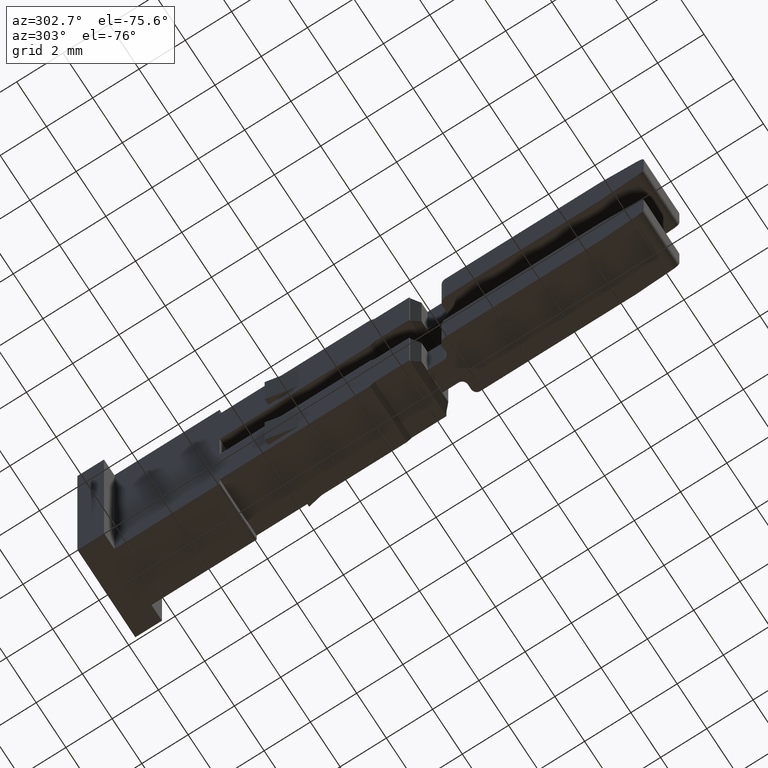
[diagram: clean part render]
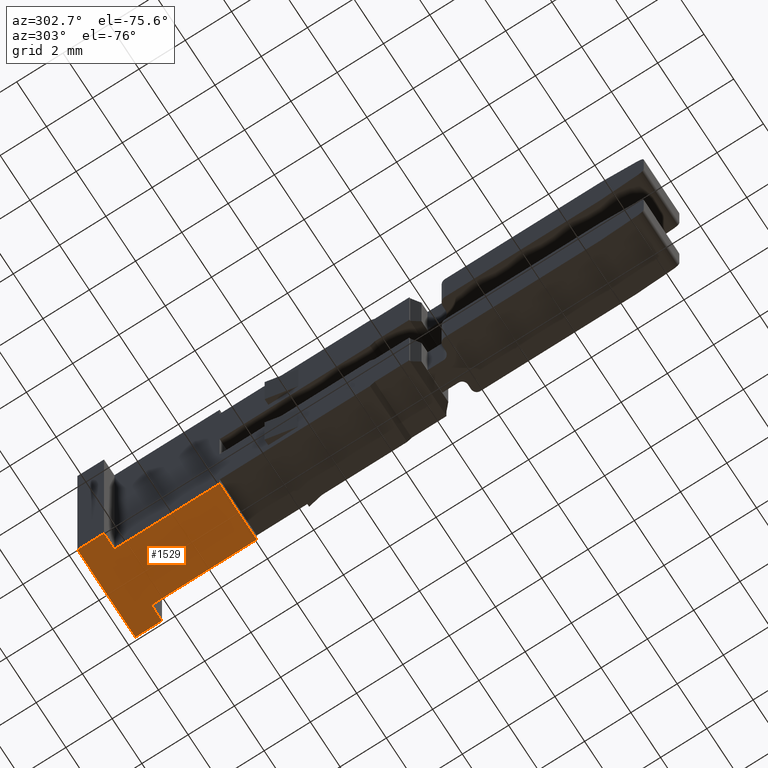
[diagram: same view with one face highlighted and labeled with its STEP entity id]
A machine part, auxiliary view. The second image highlights one B-rep face of the part: STEP entity #1529.
In plain terms, the highlighted planar face has unit normal (-0, -0, -1).
Its self-contained STEP definition (entity closure, byte-faithful):
#11 = VECTOR ( 'NONE', #2538, 1000.000000000000000 ) ;
#24 = VECTOR ( 'NONE', #2664, 1000.000000000000000 ) ;
#49 = VECTOR ( 'NONE', #2620, 1000.000000000000000 ) ;
#155 = AXIS2_PLACEMENT_3D ( 'NONE', #2006, #2035, #1991 ) ;
#374 = VECTOR ( 'NONE', #2470, 1000.000000000000000 ) ;
#379 = VECTOR ( 'NONE', #2489, 1000.000000000000000 ) ;
#382 = VECTOR ( 'NONE', #2491, 1000.000000000000000 ) ;
#395 = VECTOR ( 'NONE', #2492, 1000.000000000000000 ) ;
#396 = VECTOR ( 'NONE', #2535, 1000.000000000000000 ) ;
#777 = ORIENTED_EDGE ( 'NONE', *, *, #1352, .F. ) ;
#781 = ORIENTED_EDGE ( 'NONE', *, *, #1339, .T. ) ;
#783 = ORIENTED_EDGE ( 'NONE', *, *, #1363, .T. ) ;
#811 = ORIENTED_EDGE ( 'NONE', *, *, #1346, .F. ) ;
#822 = ORIENTED_EDGE ( 'NONE', *, *, #1357, .T. ) ;
#831 = ORIENTED_EDGE ( 'NONE', *, *, #1330, .T. ) ;
#837 = ORIENTED_EDGE ( 'NONE', *, *, #1391, .T. ) ;
#855 = ORIENTED_EDGE ( 'NONE', *, *, #1382, .T. ) ;
#865 = EDGE_LOOP ( 'NONE', ( #777, #831, #783, #855, #822, #837, #811, #781 ) ) ;
#1257 = VERTEX_POINT ( 'NONE', #2329 ) ;
#1259 = VERTEX_POINT ( 'NONE', #2339 ) ;
#1260 = VERTEX_POINT ( 'NONE', #2344 ) ;
#1269 = VERTEX_POINT ( 'NONE', #2330 ) ;
#1270 = VERTEX_POINT ( 'NONE', #2356 ) ;
#1278 = VERTEX_POINT ( 'NONE', #2331 ) ;
#1289 = VERTEX_POINT ( 'NONE', #2337 ) ;
#1290 = VERTEX_POINT ( 'NONE', #2300 ) ;
#1330 = EDGE_CURVE ( 'NONE', #1270, #1269, #2402, .T. ) ;
#1339 = EDGE_CURVE ( 'NONE', #1257, #1278, #2478, .T. ) ;
#1346 = EDGE_CURVE ( 'NONE', #1257, #1289, #2502, .T. ) ;
#1352 = EDGE_CURVE ( 'NONE', #1270, #1278, #2508, .T. ) ;
#1357 = EDGE_CURVE ( 'NONE', #1260, #1290, #2527, .T. ) ;
#1363 = EDGE_CURVE ( 'NONE', #1269, #1259, #2537, .T. ) ;
#1382 = EDGE_CURVE ( 'NONE', #1259, #1260, #2587, .T. ) ;
#1391 = EDGE_CURVE ( 'NONE', #1290, #1289, #2615, .T. ) ;
#1529 = ADVANCED_FACE ( 'NONE', ( #2028 ), #1999, .T. ) ;
#1991 = DIRECTION ( 'NONE',  ( 0.0000000000000000000, 1.000000000000000000, -9.281390519504917400E-014 ) ) ;
#1999 = PLANE ( 'NONE',  #155 ) ;
#2006 = CARTESIAN_POINT ( 'NONE',  ( 1457.871626077922200, 1004.894679537514000, -87.84999999998700600 ) ) ;
#2028 = FACE_OUTER_BOUND ( 'NONE', #865, .T. ) ;
#2035 = DIRECTION ( 'NONE',  ( -1.715124499443520100E-015, -9.281390519504917400E-014, -1.000000000000000000 ) ) ;
#2300 = CARTESIAN_POINT ( 'NONE',  ( 1456.769071211365800, 1008.542679537516500, -87.84999999998723300 ) ) ;
#2329 = CARTESIAN_POINT ( 'NONE',  ( 1456.068071211366000, 1009.692679537514100, -87.84999999998744600 ) ) ;
#2330 = CARTESIAN_POINT ( 'NONE',  ( 1459.267071211366600, 1008.542679537515800, -87.84999999998737500 ) ) ;
#2331 = CARTESIAN_POINT ( 'NONE',  ( 1459.968071211366100, 1009.692679537514100, -87.84999999998740300 ) ) ;
#2337 = CARTESIAN_POINT ( 'NONE',  ( 1456.068071211366000, 1008.542679537516500, -87.84999999998736100 ) ) ;
#2339 = CARTESIAN_POINT ( 'NONE',  ( 1459.267071211366600, 1003.994679537510600, -87.84999999998711900 ) ) ;
#2344 = CARTESIAN_POINT ( 'NONE',  ( 1456.769071211365800, 1003.994679537512800, -87.84999999998702000 ) ) ;
#2356 = CARTESIAN_POINT ( 'NONE',  ( 1459.968071211366100, 1008.542679537513700, -87.84999999998736100 ) ) ;
#2402 = LINE ( 'NONE', #2471, #374 ) ;
#2458 = CARTESIAN_POINT ( 'NONE',  ( 1457.871626077922200, 1009.692679537512000, -87.84999999998744600 ) ) ;
#2470 = DIRECTION ( 'NONE',  ( -1.000000000000000000, 1.591874026890570400E-028, 1.715124499443520100E-015 ) ) ;
#2471 = CARTESIAN_POINT ( 'NONE',  ( 1457.871626077922200, 1008.542679537512100, -87.84999999998734700 ) ) ;
#2478 = LINE ( 'NONE', #2458, #379 ) ;
#2489 = DIRECTION ( 'NONE',  ( 1.000000000000000000, -1.591874026890570400E-028, -1.715124499443520100E-015 ) ) ;
#2491 = DIRECTION ( 'NONE',  ( 6.401193638283110000E-015, 1.000000000000000000, 0.0000000000000000000 ) ) ;
#2492 = DIRECTION ( 'NONE',  ( -6.401193638283130500E-015, -1.000000000000000000, 0.0000000000000000000 ) ) ;
#2502 = LINE ( 'NONE', #2507, #395 ) ;
#2507 = CARTESIAN_POINT ( 'NONE',  ( 1456.068071211366000, 1009.692679537520100, -87.84999999998744600 ) ) ;
#2508 = LINE ( 'NONE', #2513, #382 ) ;
#2513 = CARTESIAN_POINT ( 'NONE',  ( 1459.968071211366100, 1009.692679537520100, -87.84999999998736100 ) ) ;
#2527 = LINE ( 'NONE', #2534, #396 ) ;
#2534 = CARTESIAN_POINT ( 'NONE',  ( 1456.769071211365800, 1004.894679537514000, -87.84999999998700600 ) ) ;
#2535 = DIRECTION ( 'NONE',  ( 0.0000000000000000000, 1.000000000000000000, -9.281390519504917400E-014 ) ) ;
#2537 = LINE ( 'NONE', #2543, #11 ) ;
#2538 = DIRECTION ( 'NONE',  ( -1.280238727656624100E-014, -1.000000000000000000, 0.0000000000000000000 ) ) ;
#2543 = CARTESIAN_POINT ( 'NONE',  ( 1459.267071211366600, 1007.642679537518000, -87.84999999998740300 ) ) ;
#2587 = LINE ( 'NONE', #2619, #49 ) ;
#2591 = CARTESIAN_POINT ( 'NONE',  ( 1456.167660365589900, 1008.542679537518100, -87.84999999998730400 ) ) ;
#2615 = LINE ( 'NONE', #2591, #24 ) ;
#2619 = CARTESIAN_POINT ( 'NONE',  ( 1457.871626077922200, 1003.994679537510600, -87.84999999998692000 ) ) ;
#2620 = DIRECTION ( 'NONE',  ( -1.000000000000000000, 1.591874026890570400E-028, 1.715124499443520100E-015 ) ) ;
#2664 = DIRECTION ( 'NONE',  ( -1.000000000000000000, -0.0000000000000000000, 0.0000000000000000000 ) ) ;